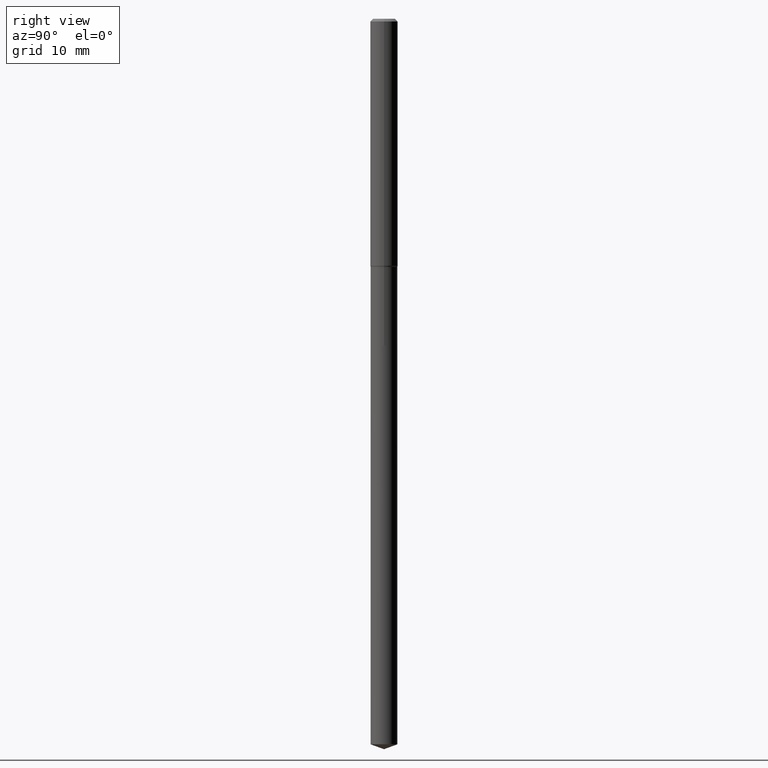
[diagram: clean part render]
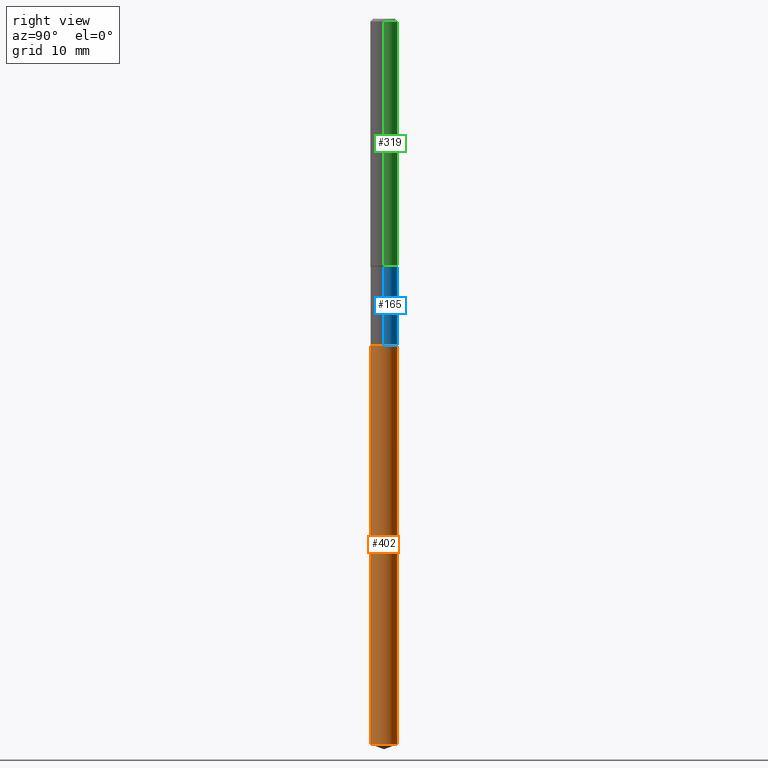
[diagram: same view with three faces highlighted in distinct colors, each labeled with its STEP entity id]
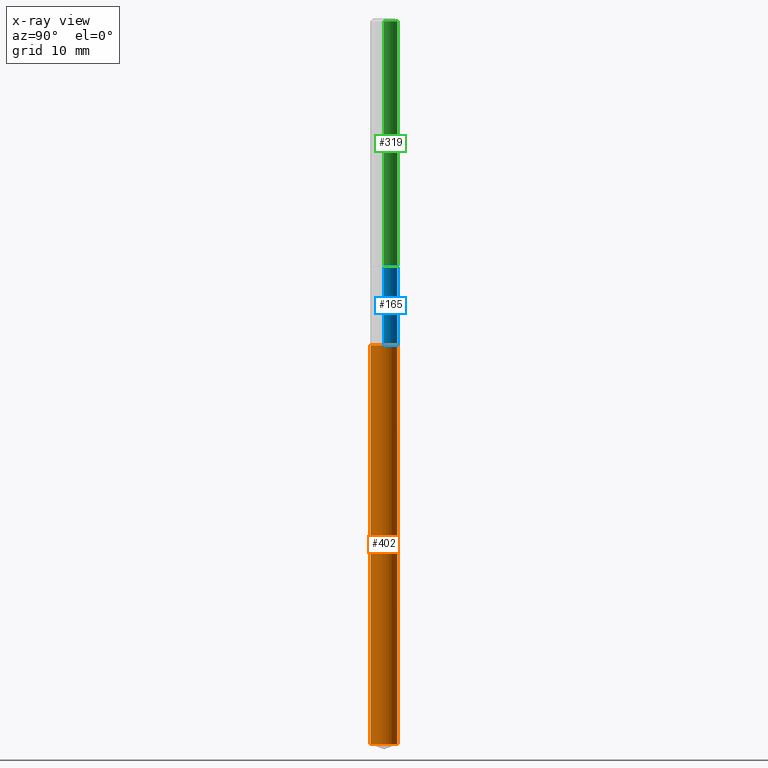
[diagram: x-ray of the same camera — body ghosted, the three highlighted faces saturated]
A machine part, right view with three faces highlighted in distinct colors.
The next image is the same camera in x-ray (body ghosted, the three faces saturated) — at least one of them is partly hidden behind the body in this view.
Their STEP definitions:

[orange] entity #402 — the highlighted cylindrical surface (edge-blend (fillet) strip) has radius 1.9495 mm, axis along (-0, 0, 1).
#36 = VECTOR ( 'NONE', #117, 39.37007874015748143 ) ;
#41 = CARTESIAN_POINT ( 'NONE',  ( 5.453415496959783512E-16, 0.07674999999998556588, -4.145265284520068150 ) ) ;
#46 = DIRECTION ( 'NONE',  ( -2.445435281437177479E-29, 3.491529348190333241E-15, 1.000000000000000000 ) ) ;
#50 = AXIS2_PLACEMENT_3D ( 'NONE', #109, #159, #410 ) ;
#78 = DIRECTION ( 'NONE',  ( -6.982962677686265133E-15, -1.000000000000000000, 3.559411066663534686E-15 ) ) ;
#81 = DIRECTION ( 'NONE',  ( -2.445435281437177759E-29, 3.491529348190333241E-15, 1.000000000000000000 ) ) ;
#82 = CYLINDRICAL_SURFACE ( 'NONE', #355, 0.07675000000000001266 ) ;
#84 = LINE ( 'NONE', #465, #199 ) ;
#100 = EDGE_CURVE ( 'NONE', #194, #387, #259, .T. ) ;
#109 = CARTESIAN_POINT ( 'NONE',  ( 1.013704053821426034E-28, -1.447322580669358287E-14, -4.145265284520068150 ) ) ;
#117 = DIRECTION ( 'NONE',  ( -2.445435281437177759E-29, 3.491529348190333241E-15, 1.000000000000000000 ) ) ;
#153 = CARTESIAN_POINT ( 'NONE',  ( -5.359423855123753660E-16, -0.07675000000000652134, -1.866099999999999204 ) ) ;
#159 = DIRECTION ( 'NONE',  ( -2.445435281437177479E-29, 3.491529348190333241E-15, 1.000000000000000000 ) ) ;
#160 = LINE ( 'NONE', #302, #36 ) ;
#161 = ORIENTED_EDGE ( 'NONE', *, *, #360, .F. ) ;
#172 = ORIENTED_EDGE ( 'NONE', *, *, #100, .T. ) ;
#194 = VERTEX_POINT ( 'NONE', #255 ) ;
#199 = VECTOR ( 'NONE', #81, 39.37007874015748143 ) ;
#237 = DIRECTION ( 'NONE',  ( -6.982962677686265133E-15, -1.000000000000000000, 3.559411066663534686E-15 ) ) ;
#241 = CARTESIAN_POINT ( 'NONE',  ( 5.453415496959785484E-16, 0.07674999999999349010, -1.866099999999999870 ) ) ;
#255 = CARTESIAN_POINT ( 'NONE',  ( -5.359423855123197513E-16, -0.07675000000001448719, -4.145265284520068150 ) ) ;
#259 = CIRCLE ( 'NONE', #50, 0.07675000000000001266 ) ;
#286 = EDGE_LOOP ( 'NONE', ( #172, #489, #161, #288 ) ) ;
#288 = ORIENTED_EDGE ( 'NONE', *, *, #370, .F. ) ;
#302 = CARTESIAN_POINT ( 'NONE',  ( 5.453415496959225393E-16, 0.07674999999999349010, -1.866099999999999870 ) ) ;
#313 = VERTEX_POINT ( 'NONE', #153 ) ;
#326 = EDGE_CURVE ( 'NONE', #387, #457, #160, .T. ) ;
#355 = AXIS2_PLACEMENT_3D ( 'NONE', #419, #46, #78 ) ;
#360 = EDGE_CURVE ( 'NONE', #313, #457, #442, .T. ) ;
#370 = EDGE_CURVE ( 'NONE', #194, #313, #84, .T. ) ;
#378 = AXIS2_PLACEMENT_3D ( 'NONE', #385, #459, #237 ) ;
#385 = CARTESIAN_POINT ( 'NONE',  ( 4.563489339222082280E-29, -6.515453326415192788E-15, -1.866099999999999426 ) ) ;
#387 = VERTEX_POINT ( 'NONE', #41 ) ;
#402 = ADVANCED_FACE ( 'NONE', ( #424 ), #82, .T. ) ;
#410 = DIRECTION ( 'NONE',  ( -6.982962677686265133E-15, -1.000000000000000000, 0.000000000000000000 ) ) ;
#419 = CARTESIAN_POINT ( 'NONE',  ( 4.563489339222082280E-29, -6.515453326415192788E-15, -1.866099999999999426 ) ) ;
#424 = FACE_OUTER_BOUND ( 'NONE', #286, .T. ) ;
#442 = CIRCLE ( 'NONE', #378, 0.07675000000000001266 ) ;
#457 = VERTEX_POINT ( 'NONE', #241 ) ;
#459 = DIRECTION ( 'NONE',  ( -2.445435281437177479E-29, 3.491529348190333241E-15, 1.000000000000000000 ) ) ;
#465 = CARTESIAN_POINT ( 'NONE',  ( -5.359423855123753660E-16, -0.07675000000000652134, -1.866099999999999204 ) ) ;
#489 = ORIENTED_EDGE ( 'NONE', *, *, #326, .T. ) ;

[blue] entity #165 — the highlighted cylindrical surface (edge-blend (fillet) strip) has radius 1.9494 mm, axis along (-0, 0, 1).
#28 = AXIS2_PLACEMENT_3D ( 'NONE', #404, #33, #108 ) ;
#33 = DIRECTION ( 'NONE',  ( -2.445468806185136597E-29, 3.491481338843145583E-15, 1.000000000000000000 ) ) ;
#51 = VERTEX_POINT ( 'NONE', #346 ) ;
#71 = EDGE_CURVE ( 'NONE', #51, #421, #327, .T. ) ;
#73 = FACE_OUTER_BOUND ( 'NONE', #175, .T. ) ;
#76 = CARTESIAN_POINT ( 'NONE',  ( 0.000000000000000000, 0.000000000000000000, 0.000000000000000000 ) ) ;
#79 = CARTESIAN_POINT ( 'NONE',  ( 0.07674999999999994327, -5.486513775858115986E-15, -1.417899999999999716 ) ) ;
#87 = VERTEX_POINT ( 'NONE', #79 ) ;
#96 = VECTOR ( 'NONE', #190, 39.37007874015748143 ) ;
#97 = EDGE_CURVE ( 'NONE', #183, #87, #144, .T. ) ;
#106 = CARTESIAN_POINT ( 'NONE',  ( 0.07675000000000001266, -7.049649971258191813E-15, -1.865599999999999259 ) ) ;
#108 = DIRECTION ( 'NONE',  ( 1.000000000000000000, -6.982962677686271444E-15, 0.000000000000000000 ) ) ;
#144 = LINE ( 'NONE', #185, #96 ) ;
#152 = ORIENTED_EDGE ( 'NONE', *, *, #460, .F. ) ;
#165 = ADVANCED_FACE ( 'NONE', ( #73 ), #192, .T. ) ;
#175 = EDGE_LOOP ( 'NONE', ( #444, #225, #152, #353 ) ) ;
#178 = DIRECTION ( 'NONE',  ( -2.445468806185136597E-29, 3.491481338843145583E-15, 1.000000000000000000 ) ) ;
#179 = CARTESIAN_POINT ( 'NONE',  ( -0.07674999999999997102, 5.453415496958766868E-16, -3.775282681770638931E-30 ) ) ;
#183 = VERTEX_POINT ( 'NONE', #106 ) ;
#185 = CARTESIAN_POINT ( 'NONE',  ( 0.07674999999999997102, -5.359423855124207255E-16, 3.742465675423379404E-30 ) ) ;
#189 = DIRECTION ( 'NONE',  ( 1.000000000000000000, -6.982962677686265922E-15, 4.876176775795935793E-29 ) ) ;
#190 = DIRECTION ( 'NONE',  ( -2.445468806185136877E-29, 3.491481338843145188E-15, 1.000000000000000000 ) ) ;
#192 = CYLINDRICAL_SURFACE ( 'NONE', #416, 0.07674999999999997102 ) ;
#225 = ORIENTED_EDGE ( 'NONE', *, *, #71, .T. ) ;
#226 = EDGE_CURVE ( 'NONE', #183, #51, #456, .T. ) ;
#244 = DIRECTION ( 'NONE',  ( -2.445468806185136597E-29, 3.491481338843145583E-15, 1.000000000000000000 ) ) ;
#247 = DIRECTION ( 'NONE',  ( 1.000000000000000000, -6.982962677686265133E-15, 0.000000000000000000 ) ) ;
#290 = AXIS2_PLACEMENT_3D ( 'NONE', #474, #244, #247 ) ;
#320 = CIRCLE ( 'NONE', #290, 0.07674999999999994327 ) ;
#327 = LINE ( 'NONE', #179, #485 ) ;
#346 = CARTESIAN_POINT ( 'NONE',  ( -0.07675000000000001266, -5.186797938349855402E-15, -1.865599999999999259 ) ) ;
#353 = ORIENTED_EDGE ( 'NONE', *, *, #97, .F. ) ;
#354 = CARTESIAN_POINT ( 'NONE',  ( -0.07674999999999994327, -5.186797938349855402E-15, -1.417899999999999716 ) ) ;
#404 = CARTESIAN_POINT ( 'NONE',  ( 4.562266604818988918E-29, -6.513707585745769707E-15, -1.865599999999999259 ) ) ;
#416 = AXIS2_PLACEMENT_3D ( 'NONE', #76, #178, #189 ) ;
#421 = VERTEX_POINT ( 'NONE', #354 ) ;
#435 = DIRECTION ( 'NONE',  ( -2.445468806185136877E-29, 3.491481338843145188E-15, 1.000000000000000000 ) ) ;
#444 = ORIENTED_EDGE ( 'NONE', *, *, #226, .T. ) ;
#456 = CIRCLE ( 'NONE', #28, 0.07675000000000001266 ) ;
#460 = EDGE_CURVE ( 'NONE', #87, #421, #320, .T. ) ;
#474 = CARTESIAN_POINT ( 'NONE',  ( 3.467430220289904224E-29, -4.950571390345695458E-15, -1.417899999999999716 ) ) ;
#485 = VECTOR ( 'NONE', #435, 39.37007874015748143 ) ;

[green] entity #319 — the highlighted cylindrical surface (edge-blend (fillet) strip) has radius 2.0003 mm, axis along (-0, 0, 1).
#14 = CIRCLE ( 'NONE', #223, 0.07875000000000016709 ) ;
#26 = CARTESIAN_POINT ( 'NONE',  ( 3.449176992623886773E-29, -4.924510618845209310E-15, -1.410435898384861053 ) ) ;
#67 = CARTESIAN_POINT ( 'NONE',  ( -0.07875000000000016709, -4.364958214434130508E-15, -1.410435898384861053 ) ) ;
#86 = FACE_OUTER_BOUND ( 'NONE', #461, .T. ) ;
#88 = DIRECTION ( 'NONE',  ( -2.445468806185136597E-29, 3.491481338843145583E-15, 1.000000000000000000 ) ) ;
#89 = ORIENTED_EDGE ( 'NONE', *, *, #448, .T. ) ;
#99 = AXIS2_PLACEMENT_3D ( 'NONE', #351, #200, #466 ) ;
#122 = VERTEX_POINT ( 'NONE', #335 ) ;
#148 = AXIS2_PLACEMENT_3D ( 'NONE', #270, #158, #388 ) ;
#156 = LINE ( 'NONE', #233, #458 ) ;
#158 = DIRECTION ( 'NONE',  ( -2.445468806185136597E-29, 3.491481338843145583E-15, 1.000000000000000000 ) ) ;
#164 = ORIENTED_EDGE ( 'NONE', *, *, #350, .F. ) ;
#171 = DIRECTION ( 'NONE',  ( 1.000000000000000000, -6.982962677686271444E-15, 0.000000000000000000 ) ) ;
#196 = VERTEX_POINT ( 'NONE', #67 ) ;
#200 = DIRECTION ( 'NONE',  ( -2.445468806185136597E-29, 3.491481338843145583E-15, 1.000000000000000000 ) ) ;
#216 = CARTESIAN_POINT ( 'NONE',  ( -0.07875000000000000056, -1.930198320554914337E-15, -0.01575000000000009726 ) ) ;
#223 = AXIS2_PLACEMENT_3D ( 'NONE', #26, #88, #171 ) ;
#233 = CARTESIAN_POINT ( 'NONE',  ( 0.07875000000000008382, -5.499083108677941345E-16, 3.839989210939303220E-30 ) ) ;
#238 = LINE ( 'NONE', #426, #392 ) ;
#270 = CARTESIAN_POINT ( 'NONE',  ( 0.000000000000000000, 0.000000000000000000, 0.000000000000000000 ) ) ;
#275 = DIRECTION ( 'NONE',  ( -2.445468806185136877E-29, 3.491481338843145188E-15, 1.000000000000000000 ) ) ;
#279 = VERTEX_POINT ( 'NONE', #216 ) ;
#299 = CIRCLE ( 'NONE', #99, 0.07875000000000000056 ) ;
#309 = EDGE_CURVE ( 'NONE', #196, #279, #238, .T. ) ;
#319 = ADVANCED_FACE ( 'NONE', ( #86 ), #349, .T. ) ;
#335 = CARTESIAN_POINT ( 'NONE',  ( 0.07875000000000016709, -5.474418929713005022E-15, -1.410435898384861053 ) ) ;
#349 = CYLINDRICAL_SURFACE ( 'NONE', #148, 0.07875000000000008382 ) ;
#350 = EDGE_CURVE ( 'NONE', #122, #358, #156, .T. ) ;
#351 = CARTESIAN_POINT ( 'NONE',  ( 3.851613369741613486E-31, -5.499083108677987691E-17, -0.01575000000000009726 ) ) ;
#358 = VERTEX_POINT ( 'NONE', #420 ) ;
#376 = ORIENTED_EDGE ( 'NONE', *, *, #408, .F. ) ;
#388 = DIRECTION ( 'NONE',  ( 1.000000000000000000, -6.982962677686267499E-15, 4.876176775795935232E-29 ) ) ;
#392 = VECTOR ( 'NONE', #455, 39.37007874015748143 ) ;
#408 = EDGE_CURVE ( 'NONE', #358, #279, #299, .T. ) ;
#420 = CARTESIAN_POINT ( 'NONE',  ( 0.07875000000000000056, -6.048991419545733705E-16, -0.01575000000000009726 ) ) ;
#426 = CARTESIAN_POINT ( 'NONE',  ( -0.07875000000000008382, 5.595524044110794920E-16, -3.873661383575742696E-30 ) ) ;
#436 = ORIENTED_EDGE ( 'NONE', *, *, #309, .T. ) ;
#448 = EDGE_CURVE ( 'NONE', #122, #196, #14, .T. ) ;
#455 = DIRECTION ( 'NONE',  ( -2.445468806185136877E-29, 3.491481338843145188E-15, 1.000000000000000000 ) ) ;
#458 = VECTOR ( 'NONE', #275, 39.37007874015748143 ) ;
#461 = EDGE_LOOP ( 'NONE', ( #89, #436, #376, #164 ) ) ;
#466 = DIRECTION ( 'NONE',  ( 1.000000000000000000, -6.982962677686265922E-15, 0.000000000000000000 ) ) ;